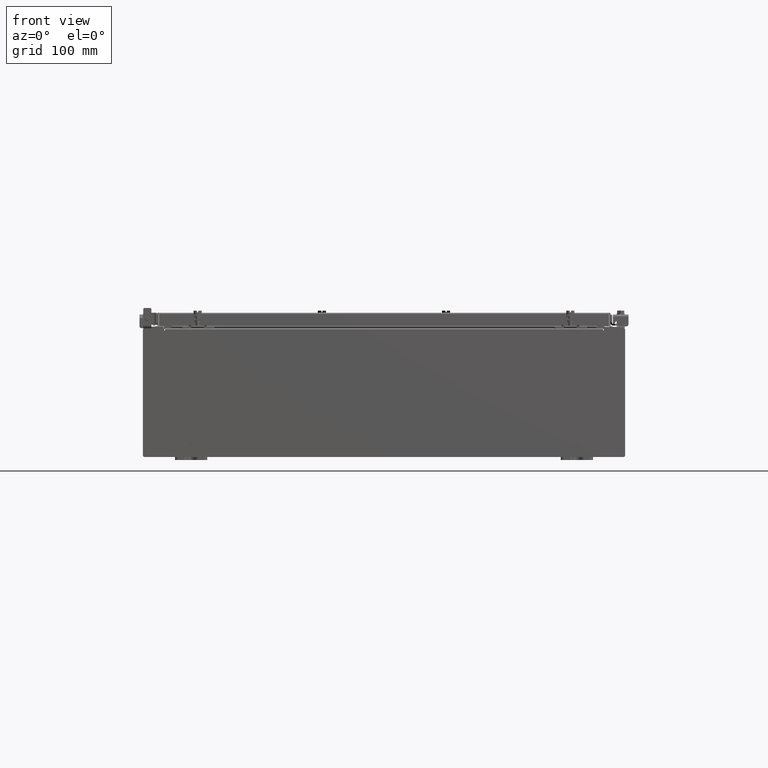
[diagram: clean part render]
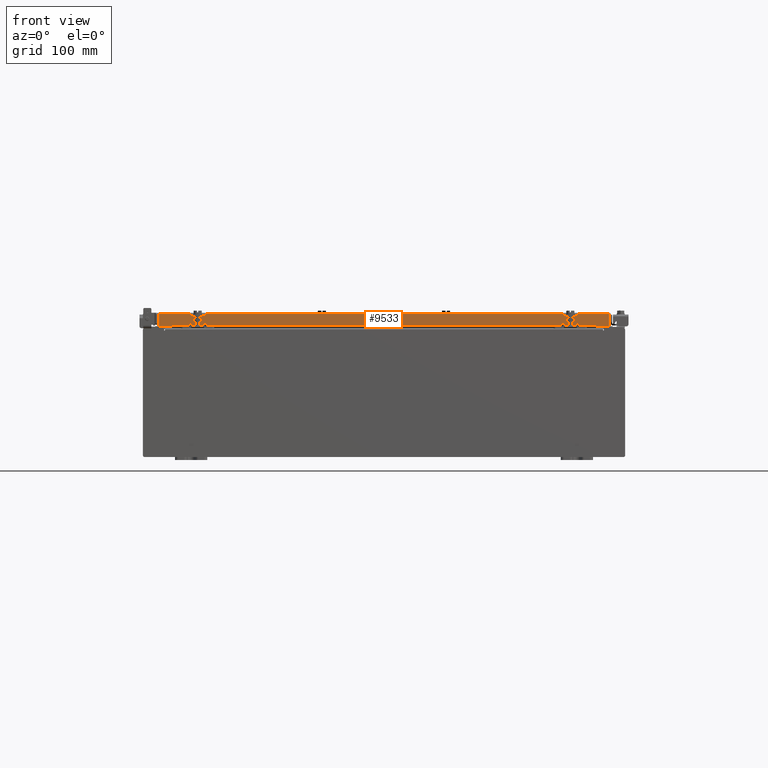
[diagram: same view with one face highlighted and labeled with its STEP entity id]
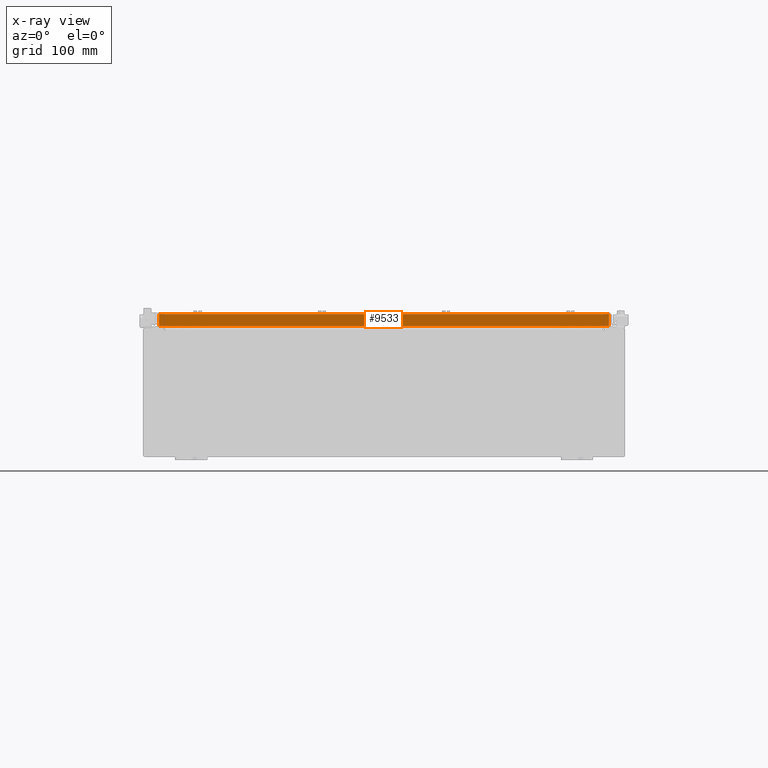
[diagram: x-ray of the same camera — body ghosted, the highlighted face saturated]
A machine part, front view. The second image highlights one B-rep face of the part: STEP entity #9533.
The next image is the same camera in x-ray: the body ghosted, the highlighted face saturated — about 0% of this face is hidden behind the body in this view.
In plain terms, the highlighted planar face has unit normal (-0, 1, -0).
Its self-contained STEP definition (entity closure, byte-faithful):
#10 = CARTESIAN_POINT ( 'NONE',  ( 14.09399999999999600, -14.09400000000000100, -0.8499999999999999800 ) ) ;
#89 = CARTESIAN_POINT ( 'NONE',  ( 13.25515786437626700, -14.09399999999999200, -0.8500000000000010900 ) ) ;
#323 = EDGE_CURVE ( 'NONE', #4569, #23874, #16169, .T. ) ;
#555 = CARTESIAN_POINT ( 'NONE',  ( -14.00515786437626900, -14.09400000000000100, -0.8499999999999966500 ) ) ;
#665 = CARTESIAN_POINT ( 'NONE',  ( 0.0000000000000000000, -14.09399999999999900, 4.043135030623109600E-014 ) ) ;
#1295 = VECTOR ( 'NONE', #19627, 39.37007874015748100 ) ;
#2481 = VECTOR ( 'NONE', #19813, 39.37007874015748100 ) ;
#3025 = VECTOR ( 'NONE', #11972, 39.37007874015748100 ) ;
#4430 = PLANE ( 'NONE',  #17220 ) ;
#4507 = VECTOR ( 'NONE', #13063, 39.37007874015748100 ) ;
#4569 = VERTEX_POINT ( 'NONE', #16272 ) ;
#5857 = VERTEX_POINT ( 'NONE', #20095 ) ;
#6039 = ORIENTED_EDGE ( 'NONE', *, *, #22243, .T. ) ;
#6052 = DIRECTION ( 'NONE',  ( 1.000000000000000000, 3.414908049476327800E-031, -9.308245715024052500E-046 ) ) ;
#6063 = VERTEX_POINT ( 'NONE', #12468 ) ;
#6299 = DIRECTION ( 'NONE',  ( 0.0000000000000000000, 2.818880942772360100E-015, 1.000000000000000000 ) ) ;
#6317 = EDGE_LOOP ( 'NONE', ( #16865, #6039, #22277, #24101, #16930, #23851 ) ) ;
#6844 = LINE ( 'NONE', #16024, #2481 ) ;
#9404 = CARTESIAN_POINT ( 'NONE',  ( -13.25515786437626700, -14.09399999999999200, -0.8500000000000010900 ) ) ;
#9533 = ADVANCED_FACE ( 'NONE', ( #22194 ), #4430, .F. ) ;
#9647 = LINE ( 'NONE', #21105, #14022 ) ;
#10026 = LINE ( 'NONE', #10, #4507 ) ;
#10107 = CARTESIAN_POINT ( 'NONE',  ( -14.00515786437626900, -14.09399999999999900, 4.043135030623109600E-014 ) ) ;
#11972 = DIRECTION ( 'NONE',  ( 0.0000000000000000000, -2.818880942772360100E-015, -1.000000000000000000 ) ) ;
#12468 = CARTESIAN_POINT ( 'NONE',  ( 14.00515786437626500, -14.09399999999999900, -0.08770000000000026400 ) ) ;
#12623 = VERTEX_POINT ( 'NONE', #555 ) ;
#12827 = LINE ( 'NONE', #21007, #22198 ) ;
#13063 = DIRECTION ( 'NONE',  ( -1.000000000000000000, -0.0000000000000000000, 1.211441035930299800E-016 ) ) ;
#13935 = EDGE_CURVE ( 'NONE', #17306, #4569, #9647, .T. ) ;
#14022 = VECTOR ( 'NONE', #19209, 39.37007874015748100 ) ;
#15352 = EDGE_CURVE ( 'NONE', #5857, #6063, #12827, .T. ) ;
#16024 = CARTESIAN_POINT ( 'NONE',  ( 14.00515786437626900, -14.09399999999999900, -0.07470000000000015500 ) ) ;
#16169 = LINE ( 'NONE', #89, #1295 ) ;
#16272 = CARTESIAN_POINT ( 'NONE',  ( 13.25515786437626700, -14.09399999999999200, -0.8500000000000010900 ) ) ;
#16865 = ORIENTED_EDGE ( 'NONE', *, *, #15352, .F. ) ;
#16930 = ORIENTED_EDGE ( 'NONE', *, *, #13935, .F. ) ;
#17220 = AXIS2_PLACEMENT_3D ( 'NONE', #665, #17467, #6299 ) ;
#17306 = VERTEX_POINT ( 'NONE', #21011 ) ;
#17467 = DIRECTION ( 'NONE',  ( -3.414908049476327800E-031, 1.000000000000000000, -2.818880942772360100E-015 ) ) ;
#18960 = EDGE_CURVE ( 'NONE', #6063, #17306, #6844, .T. ) ;
#19209 = DIRECTION ( 'NONE',  ( -1.000000000000000000, -0.0000000000000000000, 1.211441035930299800E-016 ) ) ;
#19627 = DIRECTION ( 'NONE',  ( -1.000000000000000000, 0.0000000000000000000, 0.0000000000000000000 ) ) ;
#19813 = DIRECTION ( 'NONE',  ( -0.0000000000000000000, -2.818880942772360100E-015, -1.000000000000000000 ) ) ;
#20095 = CARTESIAN_POINT ( 'NONE',  ( -14.00515786437626500, -14.09399999999999900, -0.08770000000000026400 ) ) ;
#21007 = CARTESIAN_POINT ( 'NONE',  ( 14.09399999999999900, -14.09399999999999900, -0.08770000000000026400 ) ) ;
#21011 = CARTESIAN_POINT ( 'NONE',  ( 14.00515786437626900, -14.09400000000000100, -0.8499999999999999800 ) ) ;
#21105 = CARTESIAN_POINT ( 'NONE',  ( 14.09399999999999600, -14.09400000000000100, -0.8499999999999999800 ) ) ;
#21926 = EDGE_CURVE ( 'NONE', #23874, #12623, #10026, .T. ) ;
#22194 = FACE_OUTER_BOUND ( 'NONE', #6317, .T. ) ;
#22198 = VECTOR ( 'NONE', #6052, 39.37007874015748100 ) ;
#22243 = EDGE_CURVE ( 'NONE', #5857, #12623, #22889, .T. ) ;
#22277 = ORIENTED_EDGE ( 'NONE', *, *, #21926, .F. ) ;
#22889 = LINE ( 'NONE', #10107, #3025 ) ;
#23851 = ORIENTED_EDGE ( 'NONE', *, *, #18960, .F. ) ;
#23874 = VERTEX_POINT ( 'NONE', #9404 ) ;
#24101 = ORIENTED_EDGE ( 'NONE', *, *, #323, .F. ) ;